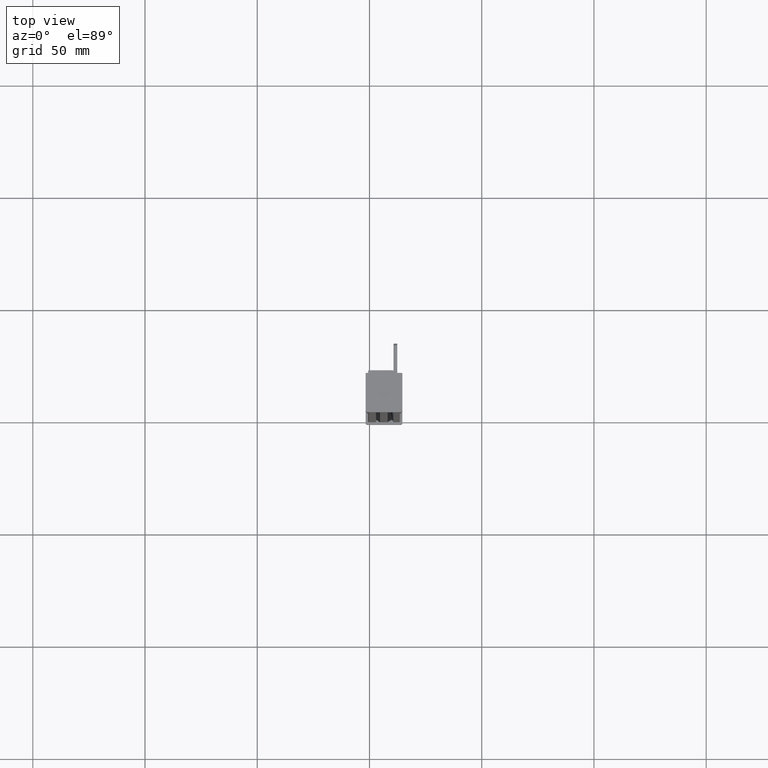
[diagram: clean part render]
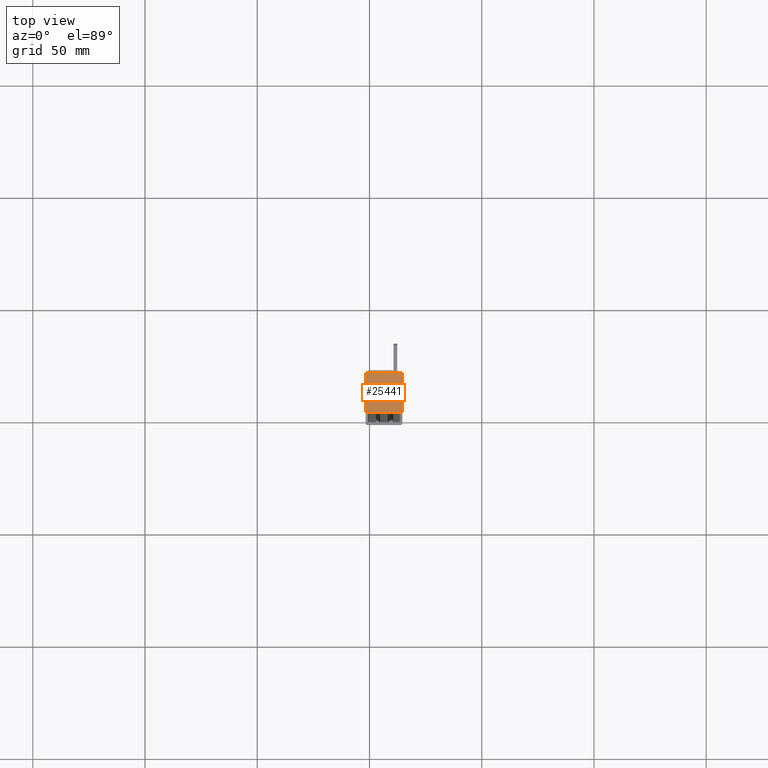
[diagram: same view with one face highlighted and labeled with its STEP entity id]
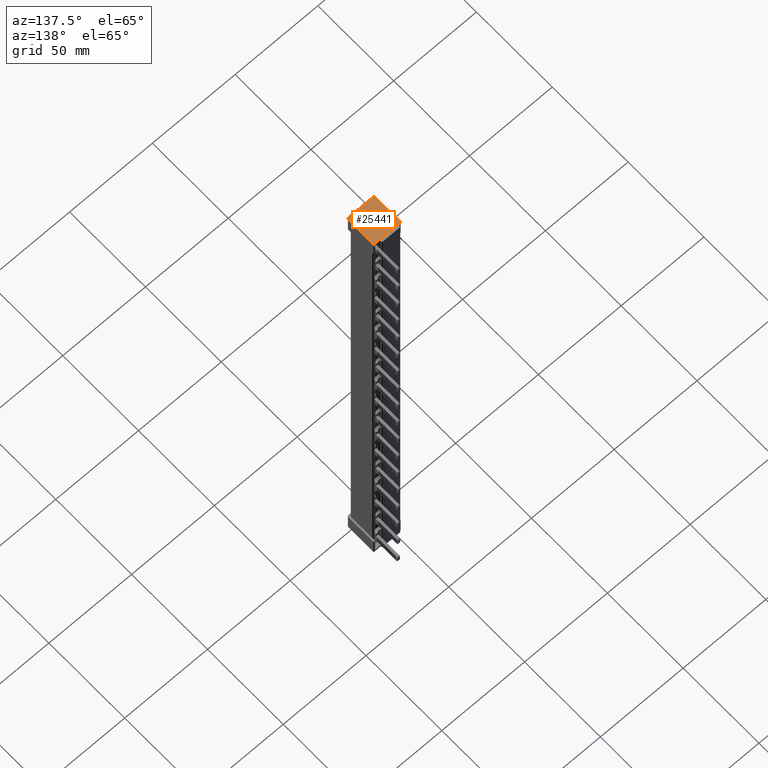
[diagram: same view with one face highlighted and labeled with its STEP entity id]
A machine part, top view. The second image highlights one B-rep face of the part: STEP entity #25441.
A second angle (auxiliary view) of the same face is appended — the face is thin or edge-on in the first view.
In plain terms, the highlighted planar face has unit normal (-0, 0, -1).
Its self-contained STEP definition (entity closure, byte-faithful):
#1674 = AXIS2_PLACEMENT_3D ( 'NONE', #5161, #5227, #5214 ) ;
#1814 = AXIS2_PLACEMENT_3D ( 'NONE', #24226, #24235, #24215 ) ;
#1830 = CIRCLE ( 'NONE', #1814, 0.1999999999999918500 ) ;
#1877 = CIRCLE ( 'NONE', #1889, 0.7500000000000564000 ) ;
#1889 = AXIS2_PLACEMENT_3D ( 'NONE', #24508, #24503, #24506 ) ;
#2141 = CIRCLE ( 'NONE', #2172, 0.1999999999999085800 ) ;
#2172 = AXIS2_PLACEMENT_3D ( 'NONE', #6551, #6573, #6532 ) ;
#2212 = VECTOR ( 'NONE', #6682, 1000.000000000000000 ) ;
#2227 = VECTOR ( 'NONE', #6731, 1000.000000000000000 ) ;
#2239 = VECTOR ( 'NONE', #6686, 1000.000000000000000 ) ;
#2244 = VECTOR ( 'NONE', #6854, 1000.000000000000000 ) ;
#2435 = AXIS2_PLACEMENT_3D ( 'NONE', #21221, #21155, #21144 ) ;
#2443 = CIRCLE ( 'NONE', #2435, 0.7500000000000006700 ) ;
#5159 = PLANE ( 'NONE',  #1674 ) ;
#5160 = FACE_OUTER_BOUND ( 'NONE', #27908, .T. ) ;
#5161 = CARTESIAN_POINT ( 'NONE',  ( 6.466000000109232800, -11.04623440810184900, 219.0000000000553700 ) ) ;
#5214 = DIRECTION ( 'NONE',  ( -1.000000000000000000, 0.0000000000000000000, 4.965472477636011600E-013 ) ) ;
#5227 = DIRECTION ( 'NONE',  ( -4.965472477636011600E-013, 0.0000000000000000000, -1.000000000000000000 ) ) ;
#6532 = DIRECTION ( 'NONE',  ( 1.000000000000000000, 0.0000000000000000000, -5.551115123128320200E-013 ) ) ;
#6551 = CARTESIAN_POINT ( 'NONE',  ( 14.46600000010933800, 16.29999999999973100, 219.0000000000514100 ) ) ;
#6573 = DIRECTION ( 'NONE',  ( -4.965472477636011600E-013, -0.0000000000000000000, -1.000000000000000000 ) ) ;
#6651 = LINE ( 'NONE', #6653, #2239 ) ;
#6653 = CARTESIAN_POINT ( 'NONE',  ( 6.466000000104061800, 16.49999999999970900, 219.0000000000593700 ) ) ;
#6682 = DIRECTION ( 'NONE',  ( -0.0000000000000000000, -1.000000000000000000, -0.0000000000000000000 ) ) ;
#6686 = DIRECTION ( 'NONE',  ( 1.000000000000000000, 0.0000000000000000000, -0.0000000000000000000 ) ) ;
#6702 = CARTESIAN_POINT ( 'NONE',  ( -1.733999999890744900, -11.04623440810184900, 219.0000000000594300 ) ) ;
#6708 = LINE ( 'NONE', #6702, #2212 ) ;
#6731 = DIRECTION ( 'NONE',  ( -0.0000000000000000000, -1.000000000000000000, -0.0000000000000000000 ) ) ;
#6756 = LINE ( 'NONE', #6767, #2227 ) ;
#6767 = CARTESIAN_POINT ( 'NONE',  ( 14.66600000010917900, -11.04623440810184900, 219.0000000000513000 ) ) ;
#6854 = DIRECTION ( 'NONE',  ( 1.000000000000000000, 0.0000000000000000000, -0.0000000000000000000 ) ) ;
#6884 = LINE ( 'NONE', #6892, #2244 ) ;
#6892 = CARTESIAN_POINT ( 'NONE',  ( 6.466000000104061800, -1.000000000000389500, 219.0000000000590600 ) ) ;
#8225 = CARTESIAN_POINT ( 'NONE',  ( -1.733999999890744900, -0.2500000000002777800, 219.0000000000594300 ) ) ;
#8226 = CARTESIAN_POINT ( 'NONE',  ( -0.9839999998933263200, -1.000000000000389500, 219.0000000000590600 ) ) ;
#8242 = CARTESIAN_POINT ( 'NONE',  ( -1.533999999893321100, 16.49999999999970900, 219.0000000000593400 ) ) ;
#8261 = CARTESIAN_POINT ( 'NONE',  ( 13.91600000010917700, -1.000000000000389500, 219.0000000000553400 ) ) ;
#8262 = CARTESIAN_POINT ( 'NONE',  ( 14.66600000010917900, -0.2500000000003888000, 219.0000000000513000 ) ) ;
#8298 = CARTESIAN_POINT ( 'NONE',  ( -1.733999999890744900, 16.29999999999973100, 219.0000000000594300 ) ) ;
#8353 = CARTESIAN_POINT ( 'NONE',  ( 14.46600000010933900, 16.49999999999970900, 219.0000000000553900 ) ) ;
#8356 = CARTESIAN_POINT ( 'NONE',  ( 14.66600000010917900, 16.29999999999973100, 219.0000000000513000 ) ) ;
#21144 = DIRECTION ( 'NONE',  ( 1.000000000000000000, 0.0000000000000000000, -4.810966440042340600E-013 ) ) ;
#21155 = DIRECTION ( 'NONE',  ( -4.965472477636011600E-013, -0.0000000000000000000, -1.000000000000000000 ) ) ;
#21221 = CARTESIAN_POINT ( 'NONE',  ( 13.91600000010917500, -0.2500000000003888000, 219.0000000000516400 ) ) ;
#22642 = VERTEX_POINT ( 'NONE', #8261 ) ;
#22663 = VERTEX_POINT ( 'NONE', #8225 ) ;
#22671 = VERTEX_POINT ( 'NONE', #8262 ) ;
#22677 = VERTEX_POINT ( 'NONE', #8226 ) ;
#22726 = VERTEX_POINT ( 'NONE', #8242 ) ;
#22783 = VERTEX_POINT ( 'NONE', #8298 ) ;
#22963 = VERTEX_POINT ( 'NONE', #8353 ) ;
#22969 = VERTEX_POINT ( 'NONE', #8356 ) ;
#24215 = DIRECTION ( 'NONE',  ( 1.000000000000000000, 0.0000000000000000000, -5.551115123126008900E-013 ) ) ;
#24226 = CARTESIAN_POINT ( 'NONE',  ( -1.533999999890739200, 16.29999999999973100, 219.0000000000593200 ) ) ;
#24235 = DIRECTION ( 'NONE',  ( -4.965472477636011600E-013, -0.0000000000000000000, -1.000000000000000000 ) ) ;
#24503 = DIRECTION ( 'NONE',  ( -4.965472477636011600E-013, -0.0000000000000000000, -1.000000000000000000 ) ) ;
#24506 = DIRECTION ( 'NONE',  ( 1.000000000000000000, 8.673617379883383700E-016, -4.810966440041983200E-013 ) ) ;
#24508 = CARTESIAN_POINT ( 'NONE',  ( -0.9839999998907443800, -0.2500000000002777800, 219.0000000000590600 ) ) ;
#25441 = ADVANCED_FACE ( 'NONE', ( #5160 ), #5159, .F. ) ;
#27908 = EDGE_LOOP ( 'NONE', ( #30917, #30936, #30907, #30891, #30897, #30899, #30896, #30926 ) ) ;
#29160 = EDGE_CURVE ( 'NONE', #22783, #22726, #1830, .T. ) ;
#29237 = EDGE_CURVE ( 'NONE', #22677, #22663, #1877, .T. ) ;
#29412 = EDGE_CURVE ( 'NONE', #22963, #22969, #2141, .T. ) ;
#29452 = EDGE_CURVE ( 'NONE', #22726, #22963, #6651, .T. ) ;
#29455 = EDGE_CURVE ( 'NONE', #22783, #22663, #6708, .T. ) ;
#29477 = EDGE_CURVE ( 'NONE', #22969, #22671, #6756, .T. ) ;
#29509 = EDGE_CURVE ( 'NONE', #22677, #22642, #6884, .T. ) ;
#29678 = EDGE_CURVE ( 'NONE', #22671, #22642, #2443, .T. ) ;
#30891 = ORIENTED_EDGE ( 'NONE', *, *, #29509, .T. ) ;
#30896 = ORIENTED_EDGE ( 'NONE', *, *, #29412, .F. ) ;
#30897 = ORIENTED_EDGE ( 'NONE', *, *, #29678, .F. ) ;
#30899 = ORIENTED_EDGE ( 'NONE', *, *, #29477, .F. ) ;
#30907 = ORIENTED_EDGE ( 'NONE', *, *, #29237, .F. ) ;
#30917 = ORIENTED_EDGE ( 'NONE', *, *, #29160, .F. ) ;
#30926 = ORIENTED_EDGE ( 'NONE', *, *, #29452, .F. ) ;
#30936 = ORIENTED_EDGE ( 'NONE', *, *, #29455, .T. ) ;